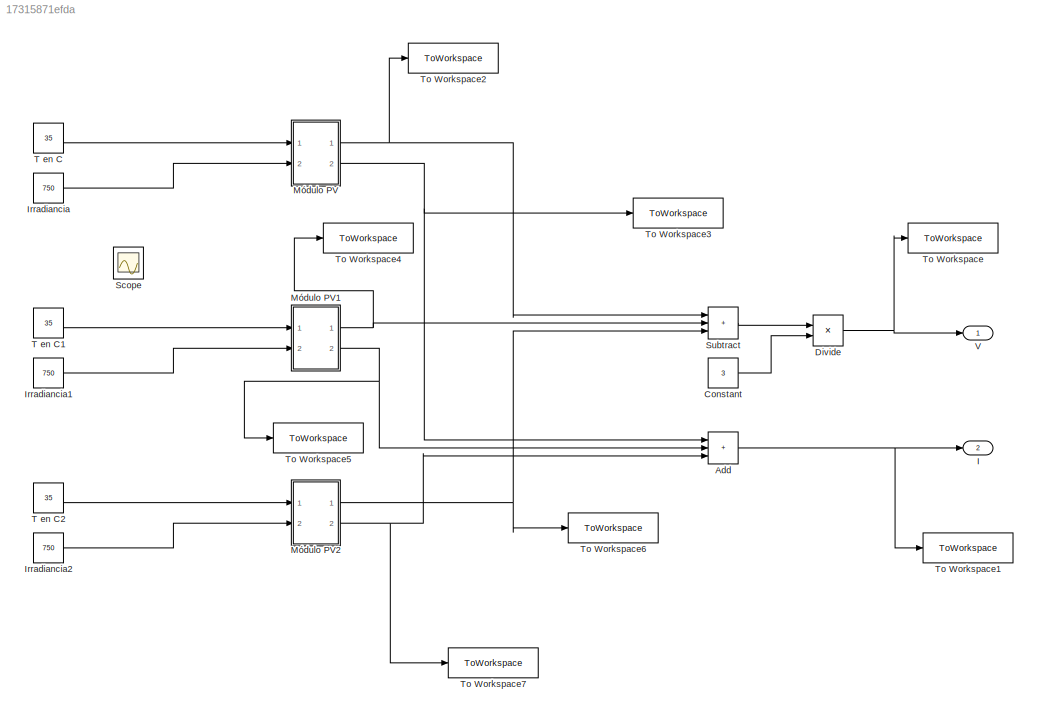
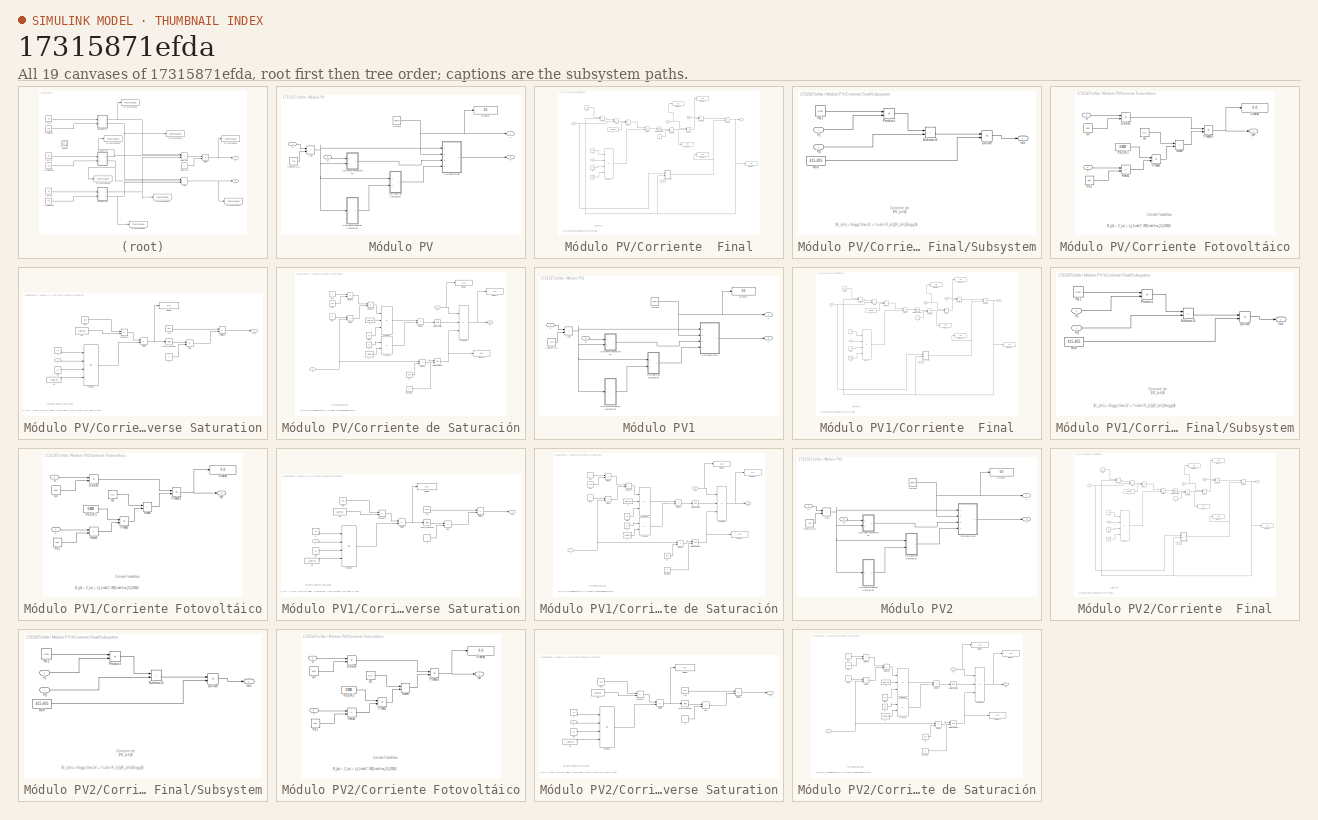
[diagram: thumbnail index - all 19 canvases of the model, root first then tree order]
MODEL slx_17315871efda
KIND model
CONFIG AbsTol = auto
CONFIG EnableMultiTasking = off
CONFIG FixedStep = auto
CONFIG MaxStep = auto
CONFIG MinStep = auto
CONFIG RelTol = 1e-3
CONFIG SampleTimeConstraint = Unconstrained
CONFIG SolverName = VariableStepAuto
CONFIG StartTime = 0.0
CONFIG StopTime = 20
BLOCK [Sum] Add
  IconShape = rectangular
  Inputs = +++
  Ports = [3, 1]
BLOCK [Constant] Constant
  Value = 3
BLOCK [Product] Divide
  Inputs = */
  Ports = [2, 1]
BLOCK [Outport] I
  Port = 2
  SignalName = Corriente Final
BLOCK [Constant] Irradiancia
  Value = 750
BLOCK [Constant] Irradiancia1
  Value = 750
BLOCK [Constant] Irradiancia2
  Value = 750
BLOCK [SubSystem] Módulo PV
  Ports = [2, 2]
  RequestExecContextInheritance = off
BLOCK [Sum] Módulo PV/Add
  IconShape = rectangular
  Ports = [2, 1]
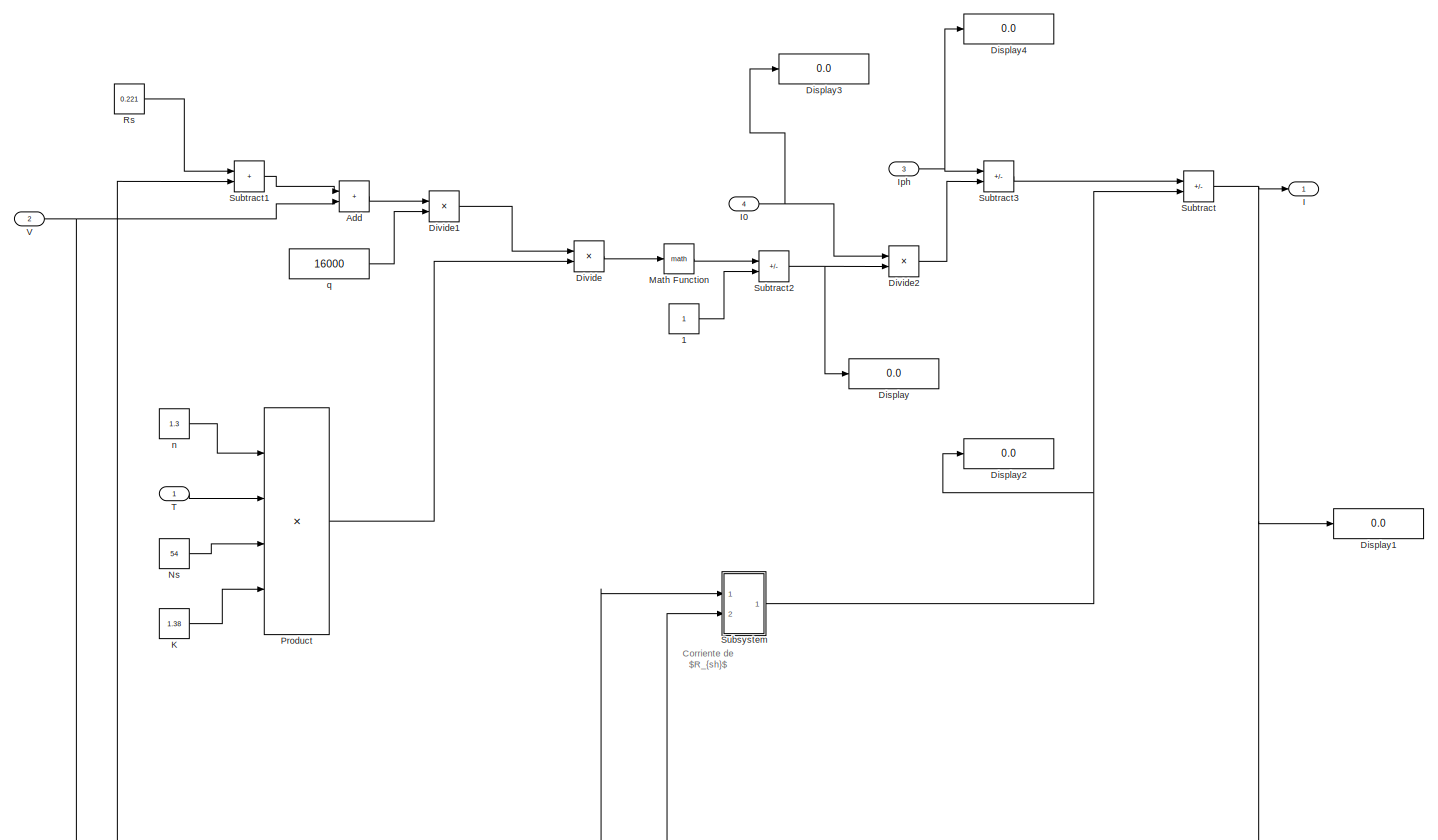
[diagram: Módulo PV/Corriente  Final - part 1/2, most of the canvas]
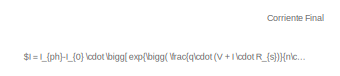
[diagram: Módulo PV/Corriente  Final - part 2/2, bottom left region]
BLOCK [SubSystem] Módulo PV/Corriente  Final
  Ports = [4, 1]
  RequestExecContextInheritance = off
BLOCK [Constant] Módulo PV/Corriente  Final/1
BLOCK [Sum] Módulo PV/Corriente  Final/Add
  IconShape = rectangular
  Ports = [2, 1]
BLOCK [Display] Módulo PV/Corriente  Final/Display
  Decimation = 1
  Ports = [1]
BLOCK [Display] Módulo PV/Corriente  Final/Display1
  Decimation = 1
  Ports = [1]
BLOCK [Display] Módulo PV/Corriente  Final/Display2
  Decimation = 1
  Ports = [1]
BLOCK [Display] Módulo PV/Corriente  Final/Display3
  Decimation = 1
  Ports = [1]
BLOCK [Display] Módulo PV/Corriente  Final/Display4
  Decimation = 1
  Ports = [1]
BLOCK [Product] Módulo PV/Corriente  Final/Divide
  Inputs = */
  Ports = [2, 1]
BLOCK [Product] Módulo PV/Corriente  Final/Divide1
  Inputs = **
  Ports = [2, 1]
BLOCK [Product] Módulo PV/Corriente  Final/Divide2
  Inputs = **
  Ports = [2, 1]
BLOCK [Outport] Módulo PV/Corriente  Final/I
BLOCK [Inport] Módulo PV/Corriente  Final/I0
  Port = 4
BLOCK [Inport] Módulo PV/Corriente  Final/Iph
  Port = 3
BLOCK [Constant] Módulo PV/Corriente  Final/K
  Value = 1.38
BLOCK [Math] Módulo PV/Corriente  Final/Math Function
  Ports = [1, 1]
BLOCK [Constant] Módulo PV/Corriente  Final/Ns
  Value = 54
BLOCK [Product] Módulo PV/Corriente  Final/Product
  Inputs = 4
  Ports = [4, 1]
BLOCK [Constant] Módulo PV/Corriente  Final/Rs
  Value = 0.221
BLOCK [SubSystem] Módulo PV/Corriente  Final/Subsystem
  Ports = [2, 1]
  RequestExecContextInheritance = off
BLOCK [Product] Módulo PV/Corriente  Final/Subsystem/Divide
  Inputs = */
  Ports = [2, 1]
BLOCK [Inport] Módulo PV/Corriente  Final/Subsystem/I()
  Port = 2
BLOCK [Outport] Módulo PV/Corriente  Final/Subsystem/Ish
BLOCK [Product] Módulo PV/Corriente  Final/Subsystem/Product
  Ports = [2, 1]
BLOCK [Constant] Módulo PV/Corriente  Final/Subsystem/Rs1
  Value = 0.221
BLOCK [Constant] Módulo PV/Corriente  Final/Subsystem/Rsh
  Value = 415.405
BLOCK [Sum] Módulo PV/Corriente  Final/Subsystem/Subtract1
  IconShape = rectangular
  Ports = [2, 1]
BLOCK [Inport] Módulo PV/Corriente  Final/Subsystem/V()
BLOCK [Sum] Módulo PV/Corriente  Final/Subtract
  IconShape = rectangular
  Inputs = +-
  Ports = [2, 1]
BLOCK [Sum] Módulo PV/Corriente  Final/Subtract1
  IconShape = rectangular
  Ports = [2, 1]
BLOCK [Sum] Módulo PV/Corriente  Final/Subtract2
  IconShape = rectangular
  Inputs = +-
  Ports = [2, 1]
BLOCK [Sum] Módulo PV/Corriente  Final/Subtract3
  IconShape = rectangular
  Inputs = +-
  Ports = [2, 1]
BLOCK [Inport] Módulo PV/Corriente  Final/T
BLOCK [Inport] Módulo PV/Corriente  Final/V
  Port = 2
BLOCK [Constant] Módulo PV/Corriente  Final/n
  Value = 1.3
BLOCK [Constant] Módulo PV/Corriente  Final/q
  Value = 16000
BLOCK [SubSystem] Módulo PV/Corriente Fotovoltáico
  Ports = [2, 1]
  RequestExecContextInheritance = off
BLOCK [Display] Módulo PV/Corriente Fotovoltáico/Display
  Decimation = 1
  Ports = [1]
BLOCK [Product] Módulo PV/Corriente Fotovoltáico/Division
  Inputs = */
  Ports = [2, 1]
BLOCK [Inport] Módulo PV/Corriente Fotovoltáico/G
BLOCK [Constant] Módulo PV/Corriente Fotovoltáico/Gn
  Value = 1000
BLOCK [Outport] Módulo PV/Corriente Fotovoltáico/Iph
BLOCK [Constant] Módulo PV/Corriente Fotovoltáico/Isc
  Value = 8.21
BLOCK [Product] Módulo PV/Corriente Fotovoltáico/Product
  Ports = [2, 1]
BLOCK [Product] Módulo PV/Corriente Fotovoltáico/Producto
  Ports = [2, 1]
BLOCK [Constant] Módulo PV/Corriente Fotovoltáico/RS1
  Value = 298
BLOCK [Constant] Módulo PV/Corriente Fotovoltáico/RS2 (Ki)
  Value = 0.0032
BLOCK [Sum] Módulo PV/Corriente Fotovoltáico/Resta2
  IconShape = rectangular
  Inputs = +-
  Ports = [2, 1]
BLOCK [Sum] Módulo PV/Corriente Fotovoltáico/Suma
  IconShape = rectangular
  Ports = [2, 1]
BLOCK [Inport] Módulo PV/Corriente Fotovoltáico/T
  Port = 2
BLOCK [SubSystem] Módulo PV/Corriente Reverse Saturation
  Ports = [1, 1]
  RequestExecContextInheritance = off
BLOCK [Constant] Módulo PV/Corriente Reverse Saturation/1
BLOCK [Display] Módulo PV/Corriente Reverse Saturation/Display
  Decimation = 1
  Ports = [1]
BLOCK [Product] Módulo PV/Corriente Reverse Saturation/Divide
  Inputs = */
  Ports = [2, 1]
BLOCK [Product] Módulo PV/Corriente Reverse Saturation/Divide1
  Inputs = */
  Ports = [2, 1]
BLOCK [Outport] Módulo PV/Corriente Reverse Saturation/Irs
BLOCK [Constant] Módulo PV/Corriente Reverse Saturation/Ish
  Value = 8.21
BLOCK [Constant] Módulo PV/Corriente Reverse Saturation/K1
  Value = 1.38e-23
BLOCK [Math] Módulo PV/Corriente Reverse Saturation/Math Function
  Ports = [1, 1]
BLOCK [Constant] Módulo PV/Corriente Reverse Saturation/Ns
  Value = 54
BLOCK [Sum] Módulo PV/Corriente Reverse Saturation/Plus
  IconShape = rectangular
  Inputs = +-
  Ports = [2, 1]
BLOCK [Product] Módulo PV/Corriente Reverse Saturation/Product
  Inputs = 4
  Ports = [4, 1]
BLOCK [Product] Módulo PV/Corriente Reverse Saturation/Product1
  Ports = [2, 1]
BLOCK [Inport] Módulo PV/Corriente Reverse Saturation/T
BLOCK [Constant] Módulo PV/Corriente Reverse Saturation/Voc
  Value = 32.9
BLOCK [Constant] Módulo PV/Corriente Reverse Saturation/n
  Value = 1.3
BLOCK [Constant] Módulo PV/Corriente Reverse Saturation/q1
  Value = 1.6e-19
BLOCK [SubSystem] Módulo PV/Corriente de Saturación
  Ports = [2, 1]
  RequestExecContextInheritance = off
BLOCK [Constant] Módulo PV/Corriente de Saturación/Constant
  Value = 3
BLOCK [Display] Módulo PV/Corriente de Saturación/Display
  Decimation = 1
  Ports = [1]
BLOCK [Display] Módulo PV/Corriente de Saturación/Display1
  Decimation = 1
  Ports = [1]
BLOCK [Display] Módulo PV/Corriente de Saturación/Display2
  Decimation = 1
  Ports = [1]
BLOCK [Product] Módulo PV/Corriente de Saturación/Divide
  Inputs = */
  Ports = [2, 1]
BLOCK [Product] Módulo PV/Corriente de Saturación/Divide1
  Inputs = */
  Ports = [2, 1]
BLOCK [Product] Módulo PV/Corriente de Saturación/Divide2
  Inputs = */
  Ports = [2, 1]
BLOCK [Product] Módulo PV/Corriente de Saturación/Divide3
  Inputs = */
  Ports = [2, 1]
BLOCK [Constant] Módulo PV/Corriente de Saturación/Eg0
  Value = 1.1
BLOCK [Outport] Módulo PV/Corriente de Saturación/Io
BLOCK [Inport] Módulo PV/Corriente de Saturación/Irs
  Port = 2
BLOCK [Constant] Módulo PV/Corriente de Saturación/K
  Value = 1.38e-23
BLOCK [Math] Módulo PV/Corriente de Saturación/Math Function
  Ports = [1, 1]
BLOCK [Math] Módulo PV/Corriente de Saturación/Math Function1
  Operator = pow
  Ports = [2, 1]
BLOCK [Product] Módulo PV/Corriente de Saturación/Product
  Inputs = 3
  Ports = [3, 1]
BLOCK [Product] Módulo PV/Corriente de Saturación/Product1
  Ports = [2, 1]
BLOCK [Product] Módulo PV/Corriente de Saturación/Product2
  Inputs = 3
  Ports = [3, 1]
BLOCK [Constant] Módulo PV/Corriente de Saturación/Rs1
BLOCK [Constant] Módulo PV/Corriente de Saturación/Rs2
BLOCK [Sum] Módulo PV/Corriente de Saturación/Subtract
  IconShape = rectangular
  Inputs = +-
  Ports = [2, 1]
BLOCK [Inport] Módulo PV/Corriente de Saturación/T
BLOCK [Constant] Módulo PV/Corriente de Saturación/Tn
  Value = 298
BLOCK [Constant] Módulo PV/Corriente de Saturación/Tn2
  Value = 298
BLOCK [Constant] Módulo PV/Corriente de Saturación/n
  Value = 1.3
BLOCK [Constant] Módulo PV/Corriente de Saturación/q
  Value = 1.6e-19
BLOCK [Display] Módulo PV/Display
  Decimation = 1
  Ports = [1]
BLOCK [Inport] Módulo PV/G
  Port = 2
BLOCK [Outport] Módulo PV/I
  Port = 2
BLOCK [Inport] Módulo PV/T
BLOCK [Constant] Módulo PV/T kelvin a C
  Value = 273
BLOCK [Outport] Módulo PV/V
BLOCK [Reference] Módulo PV/Voltaje  REF=simulink/Sources/Ramp
  Ports = [0, 1]
  SourceBlock = simulink/Sources/Ramp
  SourceProductBaseCode = SL
  SourceType = Ramp
BLOCK [SubSystem] Módulo PV1
  Ports = [2, 2]
  RequestExecContextInheritance = off
BLOCK [Sum] Módulo PV1/Add
  IconShape = rectangular
  Ports = [2, 1]
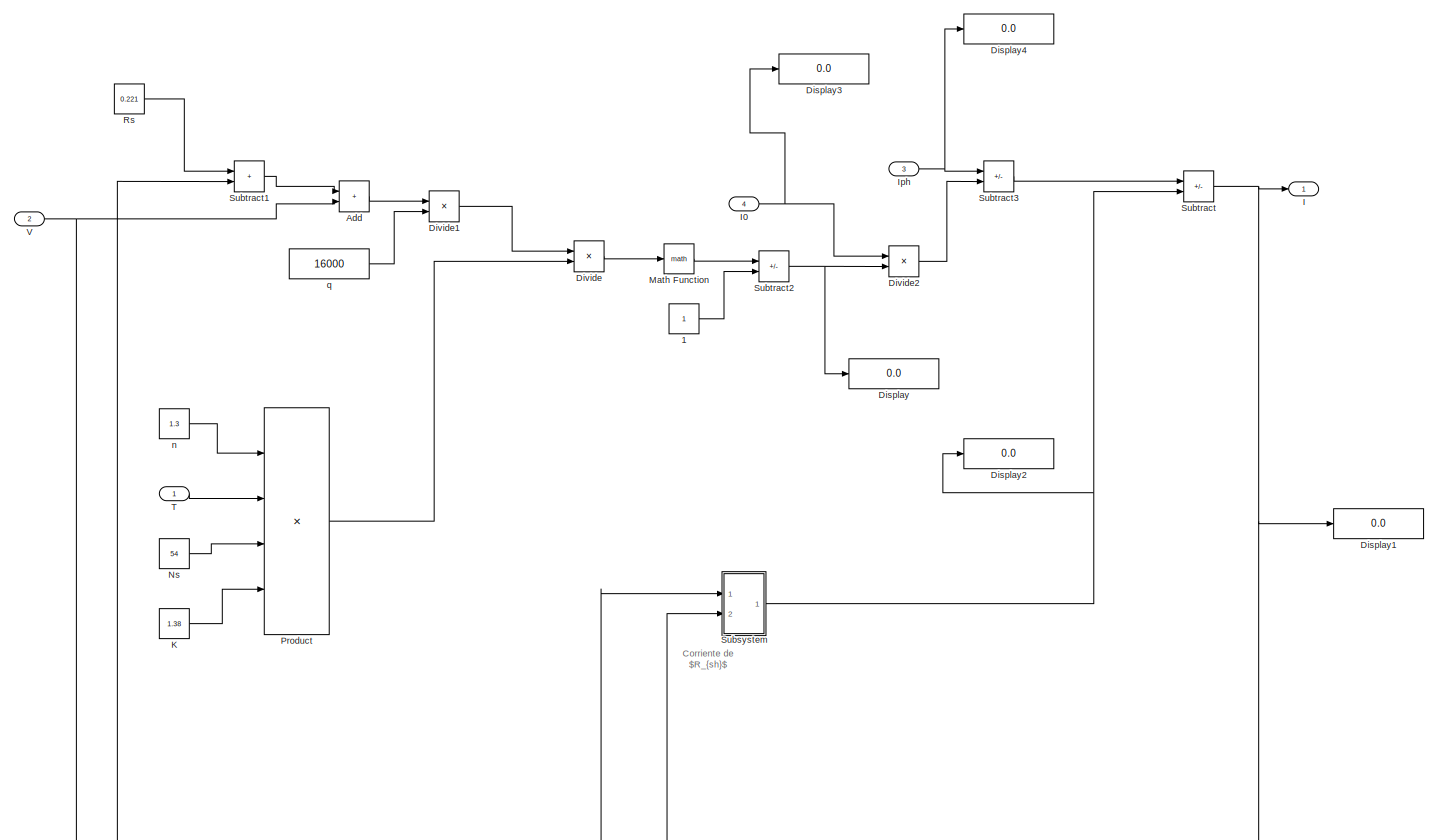
[diagram: Módulo PV1/Corriente  Final - part 1/2, most of the canvas]
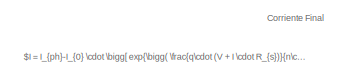
[diagram: Módulo PV1/Corriente  Final - part 2/2, bottom left region]
BLOCK [SubSystem] Módulo PV1/Corriente  Final
  Ports = [4, 1]
  RequestExecContextInheritance = off
BLOCK [Constant] Módulo PV1/Corriente  Final/1
BLOCK [Sum] Módulo PV1/Corriente  Final/Add
  IconShape = rectangular
  Ports = [2, 1]
BLOCK [Display] Módulo PV1/Corriente  Final/Display
  Decimation = 1
  Ports = [1]
BLOCK [Display] Módulo PV1/Corriente  Final/Display1
  Decimation = 1
  Ports = [1]
BLOCK [Display] Módulo PV1/Corriente  Final/Display2
  Decimation = 1
  Ports = [1]
BLOCK [Display] Módulo PV1/Corriente  Final/Display3
  Decimation = 1
  Ports = [1]
BLOCK [Display] Módulo PV1/Corriente  Final/Display4
  Decimation = 1
  Ports = [1]
BLOCK [Product] Módulo PV1/Corriente  Final/Divide
  Inputs = */
  Ports = [2, 1]
BLOCK [Product] Módulo PV1/Corriente  Final/Divide1
  Inputs = **
  Ports = [2, 1]
BLOCK [Product] Módulo PV1/Corriente  Final/Divide2
  Inputs = **
  Ports = [2, 1]
BLOCK [Outport] Módulo PV1/Corriente  Final/I
BLOCK [Inport] Módulo PV1/Corriente  Final/I0
  Port = 4
BLOCK [Inport] Módulo PV1/Corriente  Final/Iph
  Port = 3
BLOCK [Constant] Módulo PV1/Corriente  Final/K
  Value = 1.38
BLOCK [Math] Módulo PV1/Corriente  Final/Math Function
  Ports = [1, 1]
BLOCK [Constant] Módulo PV1/Corriente  Final/Ns
  Value = 54
BLOCK [Product] Módulo PV1/Corriente  Final/Product
  Inputs = 4
  Ports = [4, 1]
BLOCK [Constant] Módulo PV1/Corriente  Final/Rs
  Value = 0.221
BLOCK [SubSystem] Módulo PV1/Corriente  Final/Subsystem
  Ports = [2, 1]
  RequestExecContextInheritance = off
BLOCK [Product] Módulo PV1/Corriente  Final/Subsystem/Divide
  Inputs = */
  Ports = [2, 1]
BLOCK [Inport] Módulo PV1/Corriente  Final/Subsystem/I()
  Port = 2
BLOCK [Outport] Módulo PV1/Corriente  Final/Subsystem/Ish
BLOCK [Product] Módulo PV1/Corriente  Final/Subsystem/Product
  Ports = [2, 1]
BLOCK [Constant] Módulo PV1/Corriente  Final/Subsystem/Rs1
  Value = 0.221
BLOCK [Constant] Módulo PV1/Corriente  Final/Subsystem/Rsh
  Value = 415.405
BLOCK [Sum] Módulo PV1/Corriente  Final/Subsystem/Subtract1
  IconShape = rectangular
  Ports = [2, 1]
BLOCK [Inport] Módulo PV1/Corriente  Final/Subsystem/V()
BLOCK [Sum] Módulo PV1/Corriente  Final/Subtract
  IconShape = rectangular
  Inputs = +-
  Ports = [2, 1]
BLOCK [Sum] Módulo PV1/Corriente  Final/Subtract1
  IconShape = rectangular
  Ports = [2, 1]
BLOCK [Sum] Módulo PV1/Corriente  Final/Subtract2
  IconShape = rectangular
  Inputs = +-
  Ports = [2, 1]
BLOCK [Sum] Módulo PV1/Corriente  Final/Subtract3
  IconShape = rectangular
  Inputs = +-
  Ports = [2, 1]
BLOCK [Inport] Módulo PV1/Corriente  Final/T
BLOCK [Inport] Módulo PV1/Corriente  Final/V
  Port = 2
BLOCK [Constant] Módulo PV1/Corriente  Final/n
  Value = 1.3
BLOCK [Constant] Módulo PV1/Corriente  Final/q
  Value = 16000
BLOCK [SubSystem] Módulo PV1/Corriente Fotovoltáico
  Ports = [2, 1]
  RequestExecContextInheritance = off
BLOCK [Display] Módulo PV1/Corriente Fotovoltáico/Display
  Decimation = 1
  Ports = [1]
BLOCK [Product] Módulo PV1/Corriente Fotovoltáico/Division
  Inputs = */
  Ports = [2, 1]
BLOCK [Inport] Módulo PV1/Corriente Fotovoltáico/G
BLOCK [Constant] Módulo PV1/Corriente Fotovoltáico/Gn
  Value = 1000
BLOCK [Outport] Módulo PV1/Corriente Fotovoltáico/Iph
BLOCK [Constant] Módulo PV1/Corriente Fotovoltáico/Isc
  Value = 8.21
BLOCK [Product] Módulo PV1/Corriente Fotovoltáico/Product
  Ports = [2, 1]
BLOCK [Product] Módulo PV1/Corriente Fotovoltáico/Producto
  Ports = [2, 1]
BLOCK [Constant] Módulo PV1/Corriente Fotovoltáico/RS1
  Value = 298
BLOCK [Constant] Módulo PV1/Corriente Fotovoltáico/RS2 (Ki)
  Value = 0.0032
BLOCK [Sum] Módulo PV1/Corriente Fotovoltáico/Resta2
  IconShape = rectangular
  Inputs = +-
  Ports = [2, 1]
BLOCK [Sum] Módulo PV1/Corriente Fotovoltáico/Suma
  IconShape = rectangular
  Ports = [2, 1]
BLOCK [Inport] Módulo PV1/Corriente Fotovoltáico/T
  Port = 2
BLOCK [SubSystem] Módulo PV1/Corriente Reverse Saturation
  Ports = [1, 1]
  RequestExecContextInheritance = off
BLOCK [Constant] Módulo PV1/Corriente Reverse Saturation/1
BLOCK [Display] Módulo PV1/Corriente Reverse Saturation/Display
  Decimation = 1
  Ports = [1]
BLOCK [Product] Módulo PV1/Corriente Reverse Saturation/Divide
  Inputs = */
  Ports = [2, 1]
BLOCK [Product] Módulo PV1/Corriente Reverse Saturation/Divide1
  Inputs = */
  Ports = [2, 1]
BLOCK [Outport] Módulo PV1/Corriente Reverse Saturation/Irs
BLOCK [Constant] Módulo PV1/Corriente Reverse Saturation/Ish
  Value = 8.21
BLOCK [Constant] Módulo PV1/Corriente Reverse Saturation/K1
  Value = 1.38e-23
BLOCK [Math] Módulo PV1/Corriente Reverse Saturation/Math Function
  Ports = [1, 1]
BLOCK [Constant] Módulo PV1/Corriente Reverse Saturation/Ns
  Value = 54
BLOCK [Sum] Módulo PV1/Corriente Reverse Saturation/Plus
  IconShape = rectangular
  Inputs = +-
  Ports = [2, 1]
BLOCK [Product] Módulo PV1/Corriente Reverse Saturation/Product
  Inputs = 4
  Ports = [4, 1]
BLOCK [Product] Módulo PV1/Corriente Reverse Saturation/Product1
  Ports = [2, 1]
BLOCK [Inport] Módulo PV1/Corriente Reverse Saturation/T
BLOCK [Constant] Módulo PV1/Corriente Reverse Saturation/Voc
  Value = 32.9
BLOCK [Constant] Módulo PV1/Corriente Reverse Saturation/n
  Value = 1.3
BLOCK [Constant] Módulo PV1/Corriente Reverse Saturation/q1
  Value = 1.6e-19
BLOCK [SubSystem] Módulo PV1/Corriente de Saturación
  Ports = [2, 1]
  RequestExecContextInheritance = off
BLOCK [Constant] Módulo PV1/Corriente de Saturación/Constant
  Value = 3
BLOCK [Display] Módulo PV1/Corriente de Saturación/Display
  Decimation = 1
  Ports = [1]
BLOCK [Display] Módulo PV1/Corriente de Saturación/Display1
  Decimation = 1
  Ports = [1]
BLOCK [Display] Módulo PV1/Corriente de Saturación/Display2
  Decimation = 1
  Ports = [1]
BLOCK [Product] Módulo PV1/Corriente de Saturación/Divide
  Inputs = */
  Ports = [2, 1]
BLOCK [Product] Módulo PV1/Corriente de Saturación/Divide1
  Inputs = */
  Ports = [2, 1]
BLOCK [Product] Módulo PV1/Corriente de Saturación/Divide2
  Inputs = */
  Ports = [2, 1]
BLOCK [Product] Módulo PV1/Corriente de Saturación/Divide3
  Inputs = */
  Ports = [2, 1]
BLOCK [Constant] Módulo PV1/Corriente de Saturación/Eg0
  Value = 1.1
BLOCK [Outport] Módulo PV1/Corriente de Saturación/Io
BLOCK [Inport] Módulo PV1/Corriente de Saturación/Irs
  Port = 2
BLOCK [Constant] Módulo PV1/Corriente de Saturación/K
  Value = 1.38e-23
BLOCK [Math] Módulo PV1/Corriente de Saturación/Math Function
  Ports = [1, 1]
BLOCK [Math] Módulo PV1/Corriente de Saturación/Math Function1
  Operator = pow
  Ports = [2, 1]
BLOCK [Product] Módulo PV1/Corriente de Saturación/Product
  Inputs = 3
  Ports = [3, 1]
BLOCK [Product] Módulo PV1/Corriente de Saturación/Product1
  Ports = [2, 1]
BLOCK [Product] Módulo PV1/Corriente de Saturación/Product2
  Inputs = 3
  Ports = [3, 1]
BLOCK [Constant] Módulo PV1/Corriente de Saturación/Rs1
BLOCK [Constant] Módulo PV1/Corriente de Saturación/Rs2
BLOCK [Sum] Módulo PV1/Corriente de Saturación/Subtract
  IconShape = rectangular
  Inputs = +-
  Ports = [2, 1]
BLOCK [Inport] Módulo PV1/Corriente de Saturación/T
BLOCK [Constant] Módulo PV1/Corriente de Saturación/Tn
  Value = 298
BLOCK [Constant] Módulo PV1/Corriente de Saturación/Tn2
  Value = 298
BLOCK [Constant] Módulo PV1/Corriente de Saturación/n
  Value = 1.3
BLOCK [Constant] Módulo PV1/Corriente de Saturación/q
  Value = 1.6e-19
BLOCK [Display] Módulo PV1/Display
  Decimation = 1
  Ports = [1]
BLOCK [Inport] Módulo PV1/G
  Port = 2
BLOCK [Outport] Módulo PV1/I
  Port = 2
BLOCK [Inport] Módulo PV1/T
BLOCK [Constant] Módulo PV1/T kelvin a C
  Value = 273
BLOCK [Outport] Módulo PV1/V
BLOCK [Reference] Módulo PV1/Voltaje  REF=simulink/Sources/Ramp
  Ports = [0, 1]
  SourceBlock = simulink/Sources/Ramp
  SourceProductBaseCode = SL
  SourceType = Ramp
BLOCK [SubSystem] Módulo PV2
  Ports = [2, 2]
  RequestExecContextInheritance = off
BLOCK [Sum] Módulo PV2/Add
  IconShape = rectangular
  Ports = [2, 1]
BLOCK [SubSystem] Módulo PV2/Corriente  Final
  Ports = [4, 1]
  RequestExecContextInheritance = off
BLOCK [Constant] Módulo PV2/Corriente  Final/1
BLOCK [Sum] Módulo PV2/Corriente  Final/Add
  IconShape = rectangular
  Ports = [2, 1]
BLOCK [Display] Módulo PV2/Corriente  Final/Display
  Decimation = 1
  Ports = [1]
BLOCK [Display] Módulo PV2/Corriente  Final/Display1
  Decimation = 1
  Ports = [1]
BLOCK [Display] Módulo PV2/Corriente  Final/Display2
  Decimation = 1
  Ports = [1]
BLOCK [Display] Módulo PV2/Corriente  Final/Display3
  Decimation = 1
  Ports = [1]
BLOCK [Display] Módulo PV2/Corriente  Final/Display4
  Decimation = 1
  Ports = [1]
BLOCK [Product] Módulo PV2/Corriente  Final/Divide
  Inputs = */
  Ports = [2, 1]
BLOCK [Product] Módulo PV2/Corriente  Final/Divide1
  Inputs = **
  Ports = [2, 1]
BLOCK [Product] Módulo PV2/Corriente  Final/Divide2
  Inputs = **
  Ports = [2, 1]
BLOCK [Outport] Módulo PV2/Corriente  Final/I
BLOCK [Inport] Módulo PV2/Corriente  Final/I0
  Port = 4
BLOCK [Inport] Módulo PV2/Corriente  Final/Iph
  Port = 3
BLOCK [Constant] Módulo PV2/Corriente  Final/K
  Value = 1.38
BLOCK [Math] Módulo PV2/Corriente  Final/Math Function
  Ports = [1, 1]
BLOCK [Constant] Módulo PV2/Corriente  Final/Ns
  Value = 54
BLOCK [Product] Módulo PV2/Corriente  Final/Product
  Inputs = 4
  Ports = [4, 1]
BLOCK [Constant] Módulo PV2/Corriente  Final/Rs
  Value = 0.221
BLOCK [SubSystem] Módulo PV2/Corriente  Final/Subsystem
  Ports = [2, 1]
  RequestExecContextInheritance = off
BLOCK [Product] Módulo PV2/Corriente  Final/Subsystem/Divide
  Inputs = */
  Ports = [2, 1]
BLOCK [Inport] Módulo PV2/Corriente  Final/Subsystem/I()
  Port = 2
BLOCK [Outport] Módulo PV2/Corriente  Final/Subsystem/Ish
BLOCK [Product] Módulo PV2/Corriente  Final/Subsystem/Product
  Ports = [2, 1]
BLOCK [Constant] Módulo PV2/Corriente  Final/Subsystem/Rs1
  Value = 0.221
BLOCK [Constant] Módulo PV2/Corriente  Final/Subsystem/Rsh
  Value = 415.405
BLOCK [Sum] Módulo PV2/Corriente  Final/Subsystem/Subtract1
  IconShape = rectangular
  Ports = [2, 1]
BLOCK [Inport] Módulo PV2/Corriente  Final/Subsystem/V()
BLOCK [Sum] Módulo PV2/Corriente  Final/Subtract
  IconShape = rectangular
  Inputs = +-
  Ports = [2, 1]
BLOCK [Sum] Módulo PV2/Corriente  Final/Subtract1
  IconShape = rectangular
  Ports = [2, 1]
BLOCK [Sum] Módulo PV2/Corriente  Final/Subtract2
  IconShape = rectangular
  Inputs = +-
  Ports = [2, 1]
BLOCK [Sum] Módulo PV2/Corriente  Final/Subtract3
  IconShape = rectangular
  Inputs = +-
  Ports = [2, 1]
BLOCK [Inport] Módulo PV2/Corriente  Final/T
BLOCK [Inport] Módulo PV2/Corriente  Final/V
  Port = 2
BLOCK [Constant] Módulo PV2/Corriente  Final/n
  Value = 1.3
BLOCK [Constant] Módulo PV2/Corriente  Final/q
  Value = 16000
BLOCK [SubSystem] Módulo PV2/Corriente Fotovoltáico
  Ports = [2, 1]
  RequestExecContextInheritance = off
BLOCK [Display] Módulo PV2/Corriente Fotovoltáico/Display
  Decimation = 1
  Ports = [1]
BLOCK [Product] Módulo PV2/Corriente Fotovoltáico/Division
  Inputs = */
  Ports = [2, 1]
BLOCK [Inport] Módulo PV2/Corriente Fotovoltáico/G
BLOCK [Constant] Módulo PV2/Corriente Fotovoltáico/Gn
  Value = 1000
BLOCK [Outport] Módulo PV2/Corriente Fotovoltáico/Iph
BLOCK [Constant] Módulo PV2/Corriente Fotovoltáico/Isc
  Value = 8.21
BLOCK [Product] Módulo PV2/Corriente Fotovoltáico/Product
  Ports = [2, 1]
BLOCK [Product] Módulo PV2/Corriente Fotovoltáico/Producto
  Ports = [2, 1]
BLOCK [Constant] Módulo PV2/Corriente Fotovoltáico/RS1
  Value = 298
BLOCK [Constant] Módulo PV2/Corriente Fotovoltáico/RS2 (Ki)
  Value = 0.0032
BLOCK [Sum] Módulo PV2/Corriente Fotovoltáico/Resta2
  IconShape = rectangular
  Inputs = +-
  Ports = [2, 1]
BLOCK [Sum] Módulo PV2/Corriente Fotovoltáico/Suma
  IconShape = rectangular
  Ports = [2, 1]
BLOCK [Inport] Módulo PV2/Corriente Fotovoltáico/T
  Port = 2
BLOCK [SubSystem] Módulo PV2/Corriente Reverse Saturation
  Ports = [1, 1]
  RequestExecContextInheritance = off
BLOCK [Constant] Módulo PV2/Corriente Reverse Saturation/1
BLOCK [Display] Módulo PV2/Corriente Reverse Saturation/Display
  Decimation = 1
  Ports = [1]
BLOCK [Product] Módulo PV2/Corriente Reverse Saturation/Divide
  Inputs = */
  Ports = [2, 1]
BLOCK [Product] Módulo PV2/Corriente Reverse Saturation/Divide1
  Inputs = */
  Ports = [2, 1]
BLOCK [Outport] Módulo PV2/Corriente Reverse Saturation/Irs
BLOCK [Constant] Módulo PV2/Corriente Reverse Saturation/Ish
  Value = 8.21
BLOCK [Constant] Módulo PV2/Corriente Reverse Saturation/K1
  Value = 1.38e-23
BLOCK [Math] Módulo PV2/Corriente Reverse Saturation/Math Function
  Ports = [1, 1]
BLOCK [Constant] Módulo PV2/Corriente Reverse Saturation/Ns
  Value = 54
BLOCK [Sum] Módulo PV2/Corriente Reverse Saturation/Plus
  IconShape = rectangular
  Inputs = +-
  Ports = [2, 1]
BLOCK [Product] Módulo PV2/Corriente Reverse Saturation/Product
  Inputs = 4
  Ports = [4, 1]
BLOCK [Product] Módulo PV2/Corriente Reverse Saturation/Product1
  Ports = [2, 1]
BLOCK [Inport] Módulo PV2/Corriente Reverse Saturation/T
BLOCK [Constant] Módulo PV2/Corriente Reverse Saturation/Voc
  Value = 32.9
BLOCK [Constant] Módulo PV2/Corriente Reverse Saturation/n
  Value = 1.3
BLOCK [Constant] Módulo PV2/Corriente Reverse Saturation/q1
  Value = 1.6e-19
BLOCK [SubSystem] Módulo PV2/Corriente de Saturación
  Ports = [2, 1]
  RequestExecContextInheritance = off
BLOCK [Constant] Módulo PV2/Corriente de Saturación/Constant
  Value = 3
BLOCK [Display] Módulo PV2/Corriente de Saturación/Display
  Decimation = 1
  Ports = [1]
BLOCK [Display] Módulo PV2/Corriente de Saturación/Display1
  Decimation = 1
  Ports = [1]
BLOCK [Display] Módulo PV2/Corriente de Saturación/Display2
  Decimation = 1
  Ports = [1]
BLOCK [Product] Módulo PV2/Corriente de Saturación/Divide
  Inputs = */
  Ports = [2, 1]
BLOCK [Product] Módulo PV2/Corriente de Saturación/Divide1
  Inputs = */
  Ports = [2, 1]
BLOCK [Product] Módulo PV2/Corriente de Saturación/Divide2
  Inputs = */
  Ports = [2, 1]
BLOCK [Product] Módulo PV2/Corriente de Saturación/Divide3
  Inputs = */
  Ports = [2, 1]
BLOCK [Constant] Módulo PV2/Corriente de Saturación/Eg0
  Value = 1.1
BLOCK [Outport] Módulo PV2/Corriente de Saturación/Io
BLOCK [Inport] Módulo PV2/Corriente de Saturación/Irs
  Port = 2
BLOCK [Constant] Módulo PV2/Corriente de Saturación/K
  Value = 1.38e-23
BLOCK [Math] Módulo PV2/Corriente de Saturación/Math Function
  Ports = [1, 1]
BLOCK [Math] Módulo PV2/Corriente de Saturación/Math Function1
  Operator = pow
  Ports = [2, 1]
BLOCK [Product] Módulo PV2/Corriente de Saturación/Product
  Inputs = 3
  Ports = [3, 1]
BLOCK [Product] Módulo PV2/Corriente de Saturación/Product1
  Ports = [2, 1]
BLOCK [Product] Módulo PV2/Corriente de Saturación/Product2
  Inputs = 3
  Ports = [3, 1]
BLOCK [Constant] Módulo PV2/Corriente de Saturación/Rs1
BLOCK [Constant] Módulo PV2/Corriente de Saturación/Rs2
BLOCK [Sum] Módulo PV2/Corriente de Saturación/Subtract
  IconShape = rectangular
  Inputs = +-
  Ports = [2, 1]
BLOCK [Inport] Módulo PV2/Corriente de Saturación/T
BLOCK [Constant] Módulo PV2/Corriente de Saturación/Tn
  Value = 298
BLOCK [Constant] Módulo PV2/Corriente de Saturación/Tn2
  Value = 298
BLOCK [Constant] Módulo PV2/Corriente de Saturación/n
  Value = 1.3
BLOCK [Constant] Módulo PV2/Corriente de Saturación/q
  Value = 1.6e-19
BLOCK [Display] Módulo PV2/Display
  Decimation = 1
  Ports = [1]
BLOCK [Inport] Módulo PV2/G
  Port = 2
BLOCK [Outport] Módulo PV2/I
  Port = 2
BLOCK [Inport] Módulo PV2/T
BLOCK [Constant] Módulo PV2/T kelvin a C
  Value = 273
BLOCK [Outport] Módulo PV2/V
BLOCK [Reference] Módulo PV2/Voltaje  REF=simulink/Sources/Ramp
  Ports = [0, 1]
  SourceBlock = simulink/Sources/Ramp
  SourceProductBaseCode = SL
  SourceType = Ramp
BLOCK [Scope] Scope
  Floating = off
  IOType = viewer
  NumInputPorts = 1
  Ports = []
  ScopeSpecificationString = Simulink.scopes.TimeScopeBlockCfg('CurrentConfiguration', extmgr.ConfigurationSet(extmgr.Configuration('Core','General UI',true),extmgr.Configuration('Core','Source UI',true),extmgr.Configuration('Sources','WiredSimulink',true),extmgr.Configuration('Visuals','Time Domain',true,'SerializedDisplays',{struct('MinYLimReal','5.1695','MaxYLimReal','7.1695','YLabelReal','','MinYLimMag','5.1695','MaxYLimM...<+1353ch>
BLOCK [Sum] Subtract
  IconShape = rectangular
  Inputs = +++
  Ports = [3, 1]
BLOCK [Constant] T en C
  SampleTime = 750
  Value = 35
BLOCK [Constant] T en C1
  SampleTime = 750
  Value = 35
BLOCK [Constant] T en C2
  SampleTime = 750
  Value = 35
BLOCK [ToWorkspace] To Workspace
  FixptAsFi = on
  MaxDataPoints = inf
  Ports = [1]
  SampleTime = -1
  SaveFormat = Timeseries
  VariableName = V_total
BLOCK [ToWorkspace] To Workspace1
  FixptAsFi = on
  MaxDataPoints = inf
  Ports = [1]
  SampleTime = -1
  SaveFormat = Timeseries
  VariableName = I_total
BLOCK [ToWorkspace] To Workspace2
  FixptAsFi = on
  MaxDataPoints = inf
  Ports = [1]
  SampleTime = -1
  SaveFormat = Timeseries
  VariableName = V1
BLOCK [ToWorkspace] To Workspace3
  FixptAsFi = on
  MaxDataPoints = inf
  Ports = [1]
  SampleTime = -1
  SaveFormat = Timeseries
  VariableName = I1
BLOCK [ToWorkspace] To Workspace4
  FixptAsFi = on
  MaxDataPoints = inf
  Ports = [1]
  SampleTime = -1
  SaveFormat = Timeseries
  VariableName = V2
BLOCK [ToWorkspace] To Workspace5
  FixptAsFi = on
  MaxDataPoints = inf
  Ports = [1]
  SampleTime = -1
  SaveFormat = Timeseries
  VariableName = I2
BLOCK [ToWorkspace] To Workspace6
  FixptAsFi = on
  MaxDataPoints = inf
  Ports = [1]
  SampleTime = -1
  SaveFormat = Timeseries
  VariableName = V3
BLOCK [ToWorkspace] To Workspace7
  FixptAsFi = on
  MaxDataPoints = inf
  Ports = [1]
  SampleTime = -1
  SaveFormat = Timeseries
  VariableName = I3
BLOCK [Outport] V
  SignalName = Voltaje Final
ANNOTATION Módulo PV/Corriente  Final: Corriente Final
ANNOTATION Módulo PV/Corriente  Final: $I = I_{ph}-I_{0} \cdot \bigg[ exp{\bigg( \frac{q\cdot (V + I \cdot R_{s})}{n\cdot N_{s}\cdot K \cdot T}\bigg)}-1 \bigg] - I_{sh}$
ANNOTATION Módulo PV/Corriente  Final: Corriente de $R_{sh}$
ANNOTATION Módulo PV/Corriente  Final/Subsystem: $I_{sh} = \bigg( \frac{V + I \cdot R_{s}}{R_{sh}}\bigg)$
ANNOTATION Módulo PV/Corriente  Final/Subsystem: Corriente de $R_{sh}$
ANNOTATION Módulo PV/Corriente Fotovoltáico: Corriente Fotovoltáica
ANNOTATION Módulo PV/Corriente Fotovoltáico: $I_{ph} = [I_{sc} + k_{i}\cdot(T-298)]\cdot\frac_{G}{1000}$
ANNOTATION Módulo PV/Corriente Reverse Saturation: Corriente Reverse Saturation
ANNOTATION Módulo PV/Corriente Reverse Saturation: $I_{rs} = \frac{I_{sc}}{e^{\bigg( \frac{q\cdot V_{oc}}{n\cdot N_{s}\cdot K \cdot T}\bigg)}-1}$
ANNOTATION Módulo PV/Corriente de Saturación: Corriente de Saturación
ANNOTATION Módulo PV/Corriente de Saturación: $I_{0} = I_{rs} \cdot \bigg(\frac{T}{T_{n}}\bigg)^3 \cdot exp\bigg[\frac{q \cdot E_{g0} \cdot (1/T_{n} - 1/T)}{n \cdot K} \bigg]$
ANNOTATION Módulo PV1/Corriente  Final: Corriente Final
ANNOTATION Módulo PV1/Corriente  Final: $I = I_{ph}-I_{0} \cdot \bigg[ exp{\bigg( \frac{q\cdot (V + I \cdot R_{s})}{n\cdot N_{s}\cdot K \cdot T}\bigg)}-1 \bigg] - I_{sh}$
ANNOTATION Módulo PV1/Corriente  Final: Corriente de $R_{sh}$
ANNOTATION Módulo PV1/Corriente  Final/Subsystem: $I_{sh} = \bigg( \frac{V + I \cdot R_{s}}{R_{sh}}\bigg)$
ANNOTATION Módulo PV1/Corriente  Final/Subsystem: Corriente de $R_{sh}$
ANNOTATION Módulo PV1/Corriente Fotovoltáico: Corriente Fotovoltáica
ANNOTATION Módulo PV1/Corriente Fotovoltáico: $I_{ph} = [I_{sc} + k_{i}\cdot(T-298)]\cdot\frac_{G}{1000}$
ANNOTATION Módulo PV1/Corriente Reverse Saturation: Corriente Reverse Saturation
ANNOTATION Módulo PV1/Corriente Reverse Saturation: $I_{rs} = \frac{I_{sc}}{e^{\bigg( \frac{q\cdot V_{oc}}{n\cdot N_{s}\cdot K \cdot T}\bigg)}-1}$
ANNOTATION Módulo PV1/Corriente de Saturación: Corriente de Saturación
ANNOTATION Módulo PV1/Corriente de Saturación: $I_{0} = I_{rs} \cdot \bigg(\frac{T}{T_{n}}\bigg)^3 \cdot exp\bigg[\frac{q \cdot E_{g0} \cdot (1/T_{n} - 1/T)}{n \cdot K} \bigg]$
ANNOTATION Módulo PV2/Corriente  Final: Corriente Final
ANNOTATION Módulo PV2/Corriente  Final: $I = I_{ph}-I_{0} \cdot \bigg[ exp{\bigg( \frac{q\cdot (V + I \cdot R_{s})}{n\cdot N_{s}\cdot K \cdot T}\bigg)}-1 \bigg] - I_{sh}$
ANNOTATION Módulo PV2/Corriente  Final: Corriente de $R_{sh}$
ANNOTATION Módulo PV2/Corriente  Final/Subsystem: $I_{sh} = \bigg( \frac{V + I \cdot R_{s}}{R_{sh}}\bigg)$
ANNOTATION Módulo PV2/Corriente  Final/Subsystem: Corriente de $R_{sh}$
ANNOTATION Módulo PV2/Corriente Fotovoltáico: Corriente Fotovoltáica
ANNOTATION Módulo PV2/Corriente Fotovoltáico: $I_{ph} = [I_{sc} + k_{i}\cdot(T-298)]\cdot\frac_{G}{1000}$
ANNOTATION Módulo PV2/Corriente Reverse Saturation: Corriente Reverse Saturation
ANNOTATION Módulo PV2/Corriente Reverse Saturation: $I_{rs} = \frac{I_{sc}}{e^{\bigg( \frac{q\cdot V_{oc}}{n\cdot N_{s}\cdot K \cdot T}\bigg)}-1}$
ANNOTATION Módulo PV2/Corriente de Saturación: Corriente de Saturación
ANNOTATION Módulo PV2/Corriente de Saturación: $I_{0} = I_{rs} \cdot \bigg(\frac{T}{T_{n}}\bigg)^3 \cdot exp\bigg[\frac{q \cdot E_{g0} \cdot (1/T_{n} - 1/T)}{n \cdot K} \bigg]$
NET Add:1 -> I:1, To Workspace1:1
LINE Constant:1 -> Divide:2
NET Divide:1 -> To Workspace:1, V:1
LINE Irradiancia1:1 -> Módulo PV1:2
LINE Irradiancia2:1 -> Módulo PV2:2
LINE Irradiancia:1 -> Módulo PV:2
NET Módulo PV/Add:1 -> Módulo PV/Corriente  Final:1, Módulo PV/Corriente Fotovoltáico:2, Módulo PV/Corriente Reverse Saturation:1, Módulo PV/Corriente de Saturación:1
LINE Módulo PV/Corriente  Final/1:1 -> Módulo PV/Corriente  Final/Subtract2:2
LINE Módulo PV/Corriente  Final/Add:1 -> Módulo PV/Corriente  Final/Divide1:1
LINE Módulo PV/Corriente  Final/Divide1:1 -> Módulo PV/Corriente  Final/Divide:1
LINE Módulo PV/Corriente  Final/Divide2:1 -> Módulo PV/Corriente  Final/Subtract3:2
LINE Módulo PV/Corriente  Final/Divide:1 -> Módulo PV/Corriente  Final/Math Function:1
NET Módulo PV/Corriente  Final/I0:1 -> Módulo PV/Corriente  Final/Display3:1, Módulo PV/Corriente  Final/Divide2:1
NET Módulo PV/Corriente  Final/Iph:1 -> Módulo PV/Corriente  Final/Display4:1, Módulo PV/Corriente  Final/Subtract3:1
LINE Módulo PV/Corriente  Final/K:1 -> Módulo PV/Corriente  Final/Product:4
LINE Módulo PV/Corriente  Final/Math Function:1 -> Módulo PV/Corriente  Final/Subtract2:1
LINE Módulo PV/Corriente  Final/Ns:1 -> Módulo PV/Corriente  Final/Product:3
LINE Módulo PV/Corriente  Final/Product:1 -> Módulo PV/Corriente  Final/Divide:2
LINE Módulo PV/Corriente  Final/Rs:1 -> Módulo PV/Corriente  Final/Subtract1:1
LINE Módulo PV/Corriente  Final/Subsystem/Divide:1 -> Módulo PV/Corriente  Final/Subsystem/Ish:1
LINE Módulo PV/Corriente  Final/Subsystem/I():1 -> Módulo PV/Corriente  Final/Subsystem/Product:2
LINE Módulo PV/Corriente  Final/Subsystem/Product:1 -> Módulo PV/Corriente  Final/Subsystem/Subtract1:1
LINE Módulo PV/Corriente  Final/Subsystem/Rs1:1 -> Módulo PV/Corriente  Final/Subsystem/Product:1
LINE Módulo PV/Corriente  Final/Subsystem/Rsh:1 -> Módulo PV/Corriente  Final/Subsystem/Divide:2
LINE Módulo PV/Corriente  Final/Subsystem/Subtract1:1 -> Módulo PV/Corriente  Final/Subsystem/Divide:1
LINE Módulo PV/Corriente  Final/Subsystem/V():1 -> Módulo PV/Corriente  Final/Subsystem/Subtract1:2
NET Módulo PV/Corriente  Final/Subsystem:1 -> Módulo PV/Corriente  Final/Display2:1, Módulo PV/Corriente  Final/Subtract:2
LINE Módulo PV/Corriente  Final/Subtract1:1 -> Módulo PV/Corriente  Final/Add:1
NET Módulo PV/Corriente  Final/Subtract2:1 -> Módulo PV/Corriente  Final/Display:1, Módulo PV/Corriente  Final/Divide2:2
LINE Módulo PV/Corriente  Final/Subtract3:1 -> Módulo PV/Corriente  Final/Subtract:1
NET Módulo PV/Corriente  Final/Subtract:1 -> Módulo PV/Corriente  Final/Display1:1, Módulo PV/Corriente  Final/I:1, Módulo PV/Corriente  Final/Subsystem:2, Módulo PV/Corriente  Final/Subtract1:2
LINE Módulo PV/Corriente  Final/T:1 -> Módulo PV/Corriente  Final/Product:2
NET Módulo PV/Corriente  Final/V:1 -> Módulo PV/Corriente  Final/Add:2, Módulo PV/Corriente  Final/Subsystem:1
LINE Módulo PV/Corriente  Final/n:1 -> Módulo PV/Corriente  Final/Product:1
LINE Módulo PV/Corriente  Final/q:1 -> Módulo PV/Corriente  Final/Divide1:2
LINE Módulo PV/Corriente  Final:1 -> Módulo PV/I:1
LINE Módulo PV/Corriente Fotovoltáico/Division:1 -> Módulo PV/Corriente Fotovoltáico/Producto:1
LINE Módulo PV/Corriente Fotovoltáico/G:1 -> Módulo PV/Corriente Fotovoltáico/Division:1
LINE Módulo PV/Corriente Fotovoltáico/Gn:1 -> Módulo PV/Corriente Fotovoltáico/Division:2
LINE Módulo PV/Corriente Fotovoltáico/Isc:1 -> Módulo PV/Corriente Fotovoltáico/Suma:1
LINE Módulo PV/Corriente Fotovoltáico/Product:1 -> Módulo PV/Corriente Fotovoltáico/Suma:2
NET Módulo PV/Corriente Fotovoltáico/Producto:1 -> Módulo PV/Corriente Fotovoltáico/Display:1, Módulo PV/Corriente Fotovoltáico/Iph:1
LINE Módulo PV/Corriente Fotovoltáico/RS1:1 -> Módulo PV/Corriente Fotovoltáico/Resta2:2
LINE Módulo PV/Corriente Fotovoltáico/RS2 (Ki):1 -> Módulo PV/Corriente Fotovoltáico/Product:1
LINE Módulo PV/Corriente Fotovoltáico/Resta2:1 -> Módulo PV/Corriente Fotovoltáico/Product:2
LINE Módulo PV/Corriente Fotovoltáico/Suma:1 -> Módulo PV/Corriente Fotovoltáico/Producto:2
LINE Módulo PV/Corriente Fotovoltáico/T:1 -> Módulo PV/Corriente Fotovoltáico/Resta2:1
LINE Módulo PV/Corriente Fotovoltáico:1 -> Módulo PV/Corriente  Final:3
LINE Módulo PV/Corriente Reverse Saturation/1:1 -> Módulo PV/Corriente Reverse Saturation/Plus:2
LINE Módulo PV/Corriente Reverse Saturation/Divide1:1 -> Módulo PV/Corriente Reverse Saturation/Irs:1
NET Módulo PV/Corriente Reverse Saturation/Divide:1 -> Módulo PV/Corriente Reverse Saturation/Display:1, Módulo PV/Corriente Reverse Saturation/Math Function:1
LINE Módulo PV/Corriente Reverse Saturation/Ish:1 -> Módulo PV/Corriente Reverse Saturation/Divide1:1
LINE Módulo PV/Corriente Reverse Saturation/K1:1 -> Módulo PV/Corriente Reverse Saturation/Product:4
LINE Módulo PV/Corriente Reverse Saturation/Math Function:1 -> Módulo PV/Corriente Reverse Saturation/Plus:1
LINE Módulo PV/Corriente Reverse Saturation/Ns:1 -> Módulo PV/Corriente Reverse Saturation/Product:3
LINE Módulo PV/Corriente Reverse Saturation/Plus:1 -> Módulo PV/Corriente Reverse Saturation/Divide1:2
LINE Módulo PV/Corriente Reverse Saturation/Product1:1 -> Módulo PV/Corriente Reverse Saturation/Divide:1
LINE Módulo PV/Corriente Reverse Saturation/Product:1 -> Módulo PV/Corriente Reverse Saturation/Divide:2
LINE Módulo PV/Corriente Reverse Saturation/T:1 -> Módulo PV/Corriente Reverse Saturation/Product:2
LINE Módulo PV/Corriente Reverse Saturation/Voc:1 -> Módulo PV/Corriente Reverse Saturation/Product1:1
LINE Módulo PV/Corriente Reverse Saturation/n:1 -> Módulo PV/Corriente Reverse Saturation/Product:1
LINE Módulo PV/Corriente Reverse Saturation/q1:1 -> Módulo PV/Corriente Reverse Saturation/Product1:2
LINE Módulo PV/Corriente Reverse Saturation:1 -> Módulo PV/Corriente de Saturación:2
LINE Módulo PV/Corriente de Saturación/Constant:1 -> Módulo PV/Corriente de Saturación/Math Function1:2
LINE Módulo PV/Corriente de Saturación/Divide1:1 -> Módulo PV/Corriente de Saturación/Subtract:1
LINE Módulo PV/Corriente de Saturación/Divide2:1 -> Módulo PV/Corriente de Saturación/Math Function:1
LINE Módulo PV/Corriente de Saturación/Divide3:1 -> Módulo PV/Corriente de Saturación/Math Function1:1
LINE Módulo PV/Corriente de Saturación/Divide:1 -> Módulo PV/Corriente de Saturación/Subtract:2
LINE Módulo PV/Corriente de Saturación/Eg0:1 -> Módulo PV/Corriente de Saturación/Product:3
NET Módulo PV/Corriente de Saturación/Irs:1 -> Módulo PV/Corriente de Saturación/Display:1, Módulo PV/Corriente de Saturación/Product2:1
LINE Módulo PV/Corriente de Saturación/K:1 -> Módulo PV/Corriente de Saturación/Product1:2
NET Módulo PV/Corriente de Saturación/Math Function1:1 -> Módulo PV/Corriente de Saturación/Display2:1, Módulo PV/Corriente de Saturación/Product2:3
LINE Módulo PV/Corriente de Saturación/Math Function:1 -> Módulo PV/Corriente de Saturación/Product2:2
LINE Módulo PV/Corriente de Saturación/Product1:1 -> Módulo PV/Corriente de Saturación/Divide2:2
NET Módulo PV/Corriente de Saturación/Product2:1 -> Módulo PV/Corriente de Saturación/Display1:1, Módulo PV/Corriente de Saturación/Io:1
LINE Módulo PV/Corriente de Saturación/Product:1 -> Módulo PV/Corriente de Saturación/Divide2:1
LINE Módulo PV/Corriente de Saturación/Rs1:1 -> Módulo PV/Corriente de Saturación/Divide1:1
LINE Módulo PV/Corriente de Saturación/Rs2:1 -> Módulo PV/Corriente de Saturación/Divide:1
LINE Módulo PV/Corriente de Saturación/Subtract:1 -> Módulo PV/Corriente de Saturación/Product:1
NET Módulo PV/Corriente de Saturación/T:1 -> Módulo PV/Corriente de Saturación/Divide3:1, Módulo PV/Corriente de Saturación/Divide:2
LINE Módulo PV/Corriente de Saturación/Tn2:1 -> Módulo PV/Corriente de Saturación/Divide1:2
LINE Módulo PV/Corriente de Saturación/Tn:1 -> Módulo PV/Corriente de Saturación/Divide3:2
LINE Módulo PV/Corriente de Saturación/n:1 -> Módulo PV/Corriente de Saturación/Product1:1
LINE Módulo PV/Corriente de Saturación/q:1 -> Módulo PV/Corriente de Saturación/Product:2
LINE Módulo PV/Corriente de Saturación:1 -> Módulo PV/Corriente  Final:4
LINE Módulo PV/G:1 -> Módulo PV/Corriente Fotovoltáico:1
LINE Módulo PV/T kelvin a C:1 -> Módulo PV/Add:2
LINE Módulo PV/T:1 -> Módulo PV/Add:1
NET Módulo PV/Voltaje:1 -> Módulo PV/Corriente  Final:2, Módulo PV/Display:1, Módulo PV/V:1
NET Módulo PV1/Add:1 -> Módulo PV1/Corriente  Final:1, Módulo PV1/Corriente Fotovoltáico:2, Módulo PV1/Corriente Reverse Saturation:1, Módulo PV1/Corriente de Saturación:1
LINE Módulo PV1/Corriente  Final/1:1 -> Módulo PV1/Corriente  Final/Subtract2:2
LINE Módulo PV1/Corriente  Final/Add:1 -> Módulo PV1/Corriente  Final/Divide1:1
LINE Módulo PV1/Corriente  Final/Divide1:1 -> Módulo PV1/Corriente  Final/Divide:1
LINE Módulo PV1/Corriente  Final/Divide2:1 -> Módulo PV1/Corriente  Final/Subtract3:2
LINE Módulo PV1/Corriente  Final/Divide:1 -> Módulo PV1/Corriente  Final/Math Function:1
NET Módulo PV1/Corriente  Final/I0:1 -> Módulo PV1/Corriente  Final/Display3:1, Módulo PV1/Corriente  Final/Divide2:1
NET Módulo PV1/Corriente  Final/Iph:1 -> Módulo PV1/Corriente  Final/Display4:1, Módulo PV1/Corriente  Final/Subtract3:1
LINE Módulo PV1/Corriente  Final/K:1 -> Módulo PV1/Corriente  Final/Product:4
LINE Módulo PV1/Corriente  Final/Math Function:1 -> Módulo PV1/Corriente  Final/Subtract2:1
LINE Módulo PV1/Corriente  Final/Ns:1 -> Módulo PV1/Corriente  Final/Product:3
LINE Módulo PV1/Corriente  Final/Product:1 -> Módulo PV1/Corriente  Final/Divide:2
LINE Módulo PV1/Corriente  Final/Rs:1 -> Módulo PV1/Corriente  Final/Subtract1:1
LINE Módulo PV1/Corriente  Final/Subsystem/Divide:1 -> Módulo PV1/Corriente  Final/Subsystem/Ish:1
LINE Módulo PV1/Corriente  Final/Subsystem/I():1 -> Módulo PV1/Corriente  Final/Subsystem/Product:2
LINE Módulo PV1/Corriente  Final/Subsystem/Product:1 -> Módulo PV1/Corriente  Final/Subsystem/Subtract1:1
LINE Módulo PV1/Corriente  Final/Subsystem/Rs1:1 -> Módulo PV1/Corriente  Final/Subsystem/Product:1
LINE Módulo PV1/Corriente  Final/Subsystem/Rsh:1 -> Módulo PV1/Corriente  Final/Subsystem/Divide:2
LINE Módulo PV1/Corriente  Final/Subsystem/Subtract1:1 -> Módulo PV1/Corriente  Final/Subsystem/Divide:1
LINE Módulo PV1/Corriente  Final/Subsystem/V():1 -> Módulo PV1/Corriente  Final/Subsystem/Subtract1:2
NET Módulo PV1/Corriente  Final/Subsystem:1 -> Módulo PV1/Corriente  Final/Display2:1, Módulo PV1/Corriente  Final/Subtract:2
LINE Módulo PV1/Corriente  Final/Subtract1:1 -> Módulo PV1/Corriente  Final/Add:1
NET Módulo PV1/Corriente  Final/Subtract2:1 -> Módulo PV1/Corriente  Final/Display:1, Módulo PV1/Corriente  Final/Divide2:2
LINE Módulo PV1/Corriente  Final/Subtract3:1 -> Módulo PV1/Corriente  Final/Subtract:1
NET Módulo PV1/Corriente  Final/Subtract:1 -> Módulo PV1/Corriente  Final/Display1:1, Módulo PV1/Corriente  Final/I:1, Módulo PV1/Corriente  Final/Subsystem:2, Módulo PV1/Corriente  Final/Subtract1:2
LINE Módulo PV1/Corriente  Final/T:1 -> Módulo PV1/Corriente  Final/Product:2
NET Módulo PV1/Corriente  Final/V:1 -> Módulo PV1/Corriente  Final/Add:2, Módulo PV1/Corriente  Final/Subsystem:1
LINE Módulo PV1/Corriente  Final/n:1 -> Módulo PV1/Corriente  Final/Product:1
LINE Módulo PV1/Corriente  Final/q:1 -> Módulo PV1/Corriente  Final/Divide1:2
LINE Módulo PV1/Corriente  Final:1 -> Módulo PV1/I:1
LINE Módulo PV1/Corriente Fotovoltáico/Division:1 -> Módulo PV1/Corriente Fotovoltáico/Producto:1
LINE Módulo PV1/Corriente Fotovoltáico/G:1 -> Módulo PV1/Corriente Fotovoltáico/Division:1
LINE Módulo PV1/Corriente Fotovoltáico/Gn:1 -> Módulo PV1/Corriente Fotovoltáico/Division:2
LINE Módulo PV1/Corriente Fotovoltáico/Isc:1 -> Módulo PV1/Corriente Fotovoltáico/Suma:1
LINE Módulo PV1/Corriente Fotovoltáico/Product:1 -> Módulo PV1/Corriente Fotovoltáico/Suma:2
NET Módulo PV1/Corriente Fotovoltáico/Producto:1 -> Módulo PV1/Corriente Fotovoltáico/Display:1, Módulo PV1/Corriente Fotovoltáico/Iph:1
LINE Módulo PV1/Corriente Fotovoltáico/RS1:1 -> Módulo PV1/Corriente Fotovoltáico/Resta2:2
LINE Módulo PV1/Corriente Fotovoltáico/RS2 (Ki):1 -> Módulo PV1/Corriente Fotovoltáico/Product:1
LINE Módulo PV1/Corriente Fotovoltáico/Resta2:1 -> Módulo PV1/Corriente Fotovoltáico/Product:2
LINE Módulo PV1/Corriente Fotovoltáico/Suma:1 -> Módulo PV1/Corriente Fotovoltáico/Producto:2
LINE Módulo PV1/Corriente Fotovoltáico/T:1 -> Módulo PV1/Corriente Fotovoltáico/Resta2:1
LINE Módulo PV1/Corriente Fotovoltáico:1 -> Módulo PV1/Corriente  Final:3
LINE Módulo PV1/Corriente Reverse Saturation/1:1 -> Módulo PV1/Corriente Reverse Saturation/Plus:2
LINE Módulo PV1/Corriente Reverse Saturation/Divide1:1 -> Módulo PV1/Corriente Reverse Saturation/Irs:1
NET Módulo PV1/Corriente Reverse Saturation/Divide:1 -> Módulo PV1/Corriente Reverse Saturation/Display:1, Módulo PV1/Corriente Reverse Saturation/Math Function:1
LINE Módulo PV1/Corriente Reverse Saturation/Ish:1 -> Módulo PV1/Corriente Reverse Saturation/Divide1:1
LINE Módulo PV1/Corriente Reverse Saturation/K1:1 -> Módulo PV1/Corriente Reverse Saturation/Product:4
LINE Módulo PV1/Corriente Reverse Saturation/Math Function:1 -> Módulo PV1/Corriente Reverse Saturation/Plus:1
LINE Módulo PV1/Corriente Reverse Saturation/Ns:1 -> Módulo PV1/Corriente Reverse Saturation/Product:3
LINE Módulo PV1/Corriente Reverse Saturation/Plus:1 -> Módulo PV1/Corriente Reverse Saturation/Divide1:2
LINE Módulo PV1/Corriente Reverse Saturation/Product1:1 -> Módulo PV1/Corriente Reverse Saturation/Divide:1
LINE Módulo PV1/Corriente Reverse Saturation/Product:1 -> Módulo PV1/Corriente Reverse Saturation/Divide:2
LINE Módulo PV1/Corriente Reverse Saturation/T:1 -> Módulo PV1/Corriente Reverse Saturation/Product:2
LINE Módulo PV1/Corriente Reverse Saturation/Voc:1 -> Módulo PV1/Corriente Reverse Saturation/Product1:1
LINE Módulo PV1/Corriente Reverse Saturation/n:1 -> Módulo PV1/Corriente Reverse Saturation/Product:1
LINE Módulo PV1/Corriente Reverse Saturation/q1:1 -> Módulo PV1/Corriente Reverse Saturation/Product1:2
LINE Módulo PV1/Corriente Reverse Saturation:1 -> Módulo PV1/Corriente de Saturación:2
LINE Módulo PV1/Corriente de Saturación/Constant:1 -> Módulo PV1/Corriente de Saturación/Math Function1:2
LINE Módulo PV1/Corriente de Saturación/Divide1:1 -> Módulo PV1/Corriente de Saturación/Subtract:1
LINE Módulo PV1/Corriente de Saturación/Divide2:1 -> Módulo PV1/Corriente de Saturación/Math Function:1
LINE Módulo PV1/Corriente de Saturación/Divide3:1 -> Módulo PV1/Corriente de Saturación/Math Function1:1
LINE Módulo PV1/Corriente de Saturación/Divide:1 -> Módulo PV1/Corriente de Saturación/Subtract:2
LINE Módulo PV1/Corriente de Saturación/Eg0:1 -> Módulo PV1/Corriente de Saturación/Product:3
NET Módulo PV1/Corriente de Saturación/Irs:1 -> Módulo PV1/Corriente de Saturación/Display:1, Módulo PV1/Corriente de Saturación/Product2:1
LINE Módulo PV1/Corriente de Saturación/K:1 -> Módulo PV1/Corriente de Saturación/Product1:2
NET Módulo PV1/Corriente de Saturación/Math Function1:1 -> Módulo PV1/Corriente de Saturación/Display2:1, Módulo PV1/Corriente de Saturación/Product2:3
LINE Módulo PV1/Corriente de Saturación/Math Function:1 -> Módulo PV1/Corriente de Saturación/Product2:2
LINE Módulo PV1/Corriente de Saturación/Product1:1 -> Módulo PV1/Corriente de Saturación/Divide2:2
NET Módulo PV1/Corriente de Saturación/Product2:1 -> Módulo PV1/Corriente de Saturación/Display1:1, Módulo PV1/Corriente de Saturación/Io:1
LINE Módulo PV1/Corriente de Saturación/Product:1 -> Módulo PV1/Corriente de Saturación/Divide2:1
LINE Módulo PV1/Corriente de Saturación/Rs1:1 -> Módulo PV1/Corriente de Saturación/Divide1:1
LINE Módulo PV1/Corriente de Saturación/Rs2:1 -> Módulo PV1/Corriente de Saturación/Divide:1
LINE Módulo PV1/Corriente de Saturación/Subtract:1 -> Módulo PV1/Corriente de Saturación/Product:1
NET Módulo PV1/Corriente de Saturación/T:1 -> Módulo PV1/Corriente de Saturación/Divide3:1, Módulo PV1/Corriente de Saturación/Divide:2
LINE Módulo PV1/Corriente de Saturación/Tn2:1 -> Módulo PV1/Corriente de Saturación/Divide1:2
LINE Módulo PV1/Corriente de Saturación/Tn:1 -> Módulo PV1/Corriente de Saturación/Divide3:2
LINE Módulo PV1/Corriente de Saturación/n:1 -> Módulo PV1/Corriente de Saturación/Product1:1
LINE Módulo PV1/Corriente de Saturación/q:1 -> Módulo PV1/Corriente de Saturación/Product:2
LINE Módulo PV1/Corriente de Saturación:1 -> Módulo PV1/Corriente  Final:4
LINE Módulo PV1/G:1 -> Módulo PV1/Corriente Fotovoltáico:1
LINE Módulo PV1/T kelvin a C:1 -> Módulo PV1/Add:2
LINE Módulo PV1/T:1 -> Módulo PV1/Add:1
NET Módulo PV1/Voltaje:1 -> Módulo PV1/Corriente  Final:2, Módulo PV1/Display:1, Módulo PV1/V:1
NET Módulo PV1:1 -> Subtract:2, To Workspace4:1
NET Módulo PV1:2 -> Add:2, To Workspace5:1
NET Módulo PV2/Add:1 -> Módulo PV2/Corriente  Final:1, Módulo PV2/Corriente Fotovoltáico:2, Módulo PV2/Corriente Reverse Saturation:1, Módulo PV2/Corriente de Saturación:1
LINE Módulo PV2/Corriente  Final/1:1 -> Módulo PV2/Corriente  Final/Subtract2:2
LINE Módulo PV2/Corriente  Final/Add:1 -> Módulo PV2/Corriente  Final/Divide1:1
LINE Módulo PV2/Corriente  Final/Divide1:1 -> Módulo PV2/Corriente  Final/Divide:1
LINE Módulo PV2/Corriente  Final/Divide2:1 -> Módulo PV2/Corriente  Final/Subtract3:2
LINE Módulo PV2/Corriente  Final/Divide:1 -> Módulo PV2/Corriente  Final/Math Function:1
NET Módulo PV2/Corriente  Final/I0:1 -> Módulo PV2/Corriente  Final/Display3:1, Módulo PV2/Corriente  Final/Divide2:1
NET Módulo PV2/Corriente  Final/Iph:1 -> Módulo PV2/Corriente  Final/Display4:1, Módulo PV2/Corriente  Final/Subtract3:1
LINE Módulo PV2/Corriente  Final/K:1 -> Módulo PV2/Corriente  Final/Product:4
LINE Módulo PV2/Corriente  Final/Math Function:1 -> Módulo PV2/Corriente  Final/Subtract2:1
LINE Módulo PV2/Corriente  Final/Ns:1 -> Módulo PV2/Corriente  Final/Product:3
LINE Módulo PV2/Corriente  Final/Product:1 -> Módulo PV2/Corriente  Final/Divide:2
LINE Módulo PV2/Corriente  Final/Rs:1 -> Módulo PV2/Corriente  Final/Subtract1:1
LINE Módulo PV2/Corriente  Final/Subsystem/Divide:1 -> Módulo PV2/Corriente  Final/Subsystem/Ish:1
LINE Módulo PV2/Corriente  Final/Subsystem/I():1 -> Módulo PV2/Corriente  Final/Subsystem/Product:2
LINE Módulo PV2/Corriente  Final/Subsystem/Product:1 -> Módulo PV2/Corriente  Final/Subsystem/Subtract1:1
LINE Módulo PV2/Corriente  Final/Subsystem/Rs1:1 -> Módulo PV2/Corriente  Final/Subsystem/Product:1
LINE Módulo PV2/Corriente  Final/Subsystem/Rsh:1 -> Módulo PV2/Corriente  Final/Subsystem/Divide:2
LINE Módulo PV2/Corriente  Final/Subsystem/Subtract1:1 -> Módulo PV2/Corriente  Final/Subsystem/Divide:1
LINE Módulo PV2/Corriente  Final/Subsystem/V():1 -> Módulo PV2/Corriente  Final/Subsystem/Subtract1:2
NET Módulo PV2/Corriente  Final/Subsystem:1 -> Módulo PV2/Corriente  Final/Display2:1, Módulo PV2/Corriente  Final/Subtract:2
LINE Módulo PV2/Corriente  Final/Subtract1:1 -> Módulo PV2/Corriente  Final/Add:1
NET Módulo PV2/Corriente  Final/Subtract2:1 -> Módulo PV2/Corriente  Final/Display:1, Módulo PV2/Corriente  Final/Divide2:2
LINE Módulo PV2/Corriente  Final/Subtract3:1 -> Módulo PV2/Corriente  Final/Subtract:1
NET Módulo PV2/Corriente  Final/Subtract:1 -> Módulo PV2/Corriente  Final/Display1:1, Módulo PV2/Corriente  Final/I:1, Módulo PV2/Corriente  Final/Subsystem:2, Módulo PV2/Corriente  Final/Subtract1:2
LINE Módulo PV2/Corriente  Final/T:1 -> Módulo PV2/Corriente  Final/Product:2
NET Módulo PV2/Corriente  Final/V:1 -> Módulo PV2/Corriente  Final/Add:2, Módulo PV2/Corriente  Final/Subsystem:1
LINE Módulo PV2/Corriente  Final/n:1 -> Módulo PV2/Corriente  Final/Product:1
LINE Módulo PV2/Corriente  Final/q:1 -> Módulo PV2/Corriente  Final/Divide1:2
LINE Módulo PV2/Corriente  Final:1 -> Módulo PV2/I:1
LINE Módulo PV2/Corriente Fotovoltáico/Division:1 -> Módulo PV2/Corriente Fotovoltáico/Producto:1
LINE Módulo PV2/Corriente Fotovoltáico/G:1 -> Módulo PV2/Corriente Fotovoltáico/Division:1
LINE Módulo PV2/Corriente Fotovoltáico/Gn:1 -> Módulo PV2/Corriente Fotovoltáico/Division:2
LINE Módulo PV2/Corriente Fotovoltáico/Isc:1 -> Módulo PV2/Corriente Fotovoltáico/Suma:1
LINE Módulo PV2/Corriente Fotovoltáico/Product:1 -> Módulo PV2/Corriente Fotovoltáico/Suma:2
NET Módulo PV2/Corriente Fotovoltáico/Producto:1 -> Módulo PV2/Corriente Fotovoltáico/Display:1, Módulo PV2/Corriente Fotovoltáico/Iph:1
LINE Módulo PV2/Corriente Fotovoltáico/RS1:1 -> Módulo PV2/Corriente Fotovoltáico/Resta2:2
LINE Módulo PV2/Corriente Fotovoltáico/RS2 (Ki):1 -> Módulo PV2/Corriente Fotovoltáico/Product:1
LINE Módulo PV2/Corriente Fotovoltáico/Resta2:1 -> Módulo PV2/Corriente Fotovoltáico/Product:2
LINE Módulo PV2/Corriente Fotovoltáico/Suma:1 -> Módulo PV2/Corriente Fotovoltáico/Producto:2
LINE Módulo PV2/Corriente Fotovoltáico/T:1 -> Módulo PV2/Corriente Fotovoltáico/Resta2:1
LINE Módulo PV2/Corriente Fotovoltáico:1 -> Módulo PV2/Corriente  Final:3
LINE Módulo PV2/Corriente Reverse Saturation/1:1 -> Módulo PV2/Corriente Reverse Saturation/Plus:2
LINE Módulo PV2/Corriente Reverse Saturation/Divide1:1 -> Módulo PV2/Corriente Reverse Saturation/Irs:1
NET Módulo PV2/Corriente Reverse Saturation/Divide:1 -> Módulo PV2/Corriente Reverse Saturation/Display:1, Módulo PV2/Corriente Reverse Saturation/Math Function:1
LINE Módulo PV2/Corriente Reverse Saturation/Ish:1 -> Módulo PV2/Corriente Reverse Saturation/Divide1:1
LINE Módulo PV2/Corriente Reverse Saturation/K1:1 -> Módulo PV2/Corriente Reverse Saturation/Product:4
LINE Módulo PV2/Corriente Reverse Saturation/Math Function:1 -> Módulo PV2/Corriente Reverse Saturation/Plus:1
LINE Módulo PV2/Corriente Reverse Saturation/Ns:1 -> Módulo PV2/Corriente Reverse Saturation/Product:3
LINE Módulo PV2/Corriente Reverse Saturation/Plus:1 -> Módulo PV2/Corriente Reverse Saturation/Divide1:2
LINE Módulo PV2/Corriente Reverse Saturation/Product1:1 -> Módulo PV2/Corriente Reverse Saturation/Divide:1
LINE Módulo PV2/Corriente Reverse Saturation/Product:1 -> Módulo PV2/Corriente Reverse Saturation/Divide:2
LINE Módulo PV2/Corriente Reverse Saturation/T:1 -> Módulo PV2/Corriente Reverse Saturation/Product:2
LINE Módulo PV2/Corriente Reverse Saturation/Voc:1 -> Módulo PV2/Corriente Reverse Saturation/Product1:1
LINE Módulo PV2/Corriente Reverse Saturation/n:1 -> Módulo PV2/Corriente Reverse Saturation/Product:1
LINE Módulo PV2/Corriente Reverse Saturation/q1:1 -> Módulo PV2/Corriente Reverse Saturation/Product1:2
LINE Módulo PV2/Corriente Reverse Saturation:1 -> Módulo PV2/Corriente de Saturación:2
LINE Módulo PV2/Corriente de Saturación/Constant:1 -> Módulo PV2/Corriente de Saturación/Math Function1:2
LINE Módulo PV2/Corriente de Saturación/Divide1:1 -> Módulo PV2/Corriente de Saturación/Subtract:1
LINE Módulo PV2/Corriente de Saturación/Divide2:1 -> Módulo PV2/Corriente de Saturación/Math Function:1
LINE Módulo PV2/Corriente de Saturación/Divide3:1 -> Módulo PV2/Corriente de Saturación/Math Function1:1
LINE Módulo PV2/Corriente de Saturación/Divide:1 -> Módulo PV2/Corriente de Saturación/Subtract:2
LINE Módulo PV2/Corriente de Saturación/Eg0:1 -> Módulo PV2/Corriente de Saturación/Product:3
NET Módulo PV2/Corriente de Saturación/Irs:1 -> Módulo PV2/Corriente de Saturación/Display:1, Módulo PV2/Corriente de Saturación/Product2:1
LINE Módulo PV2/Corriente de Saturación/K:1 -> Módulo PV2/Corriente de Saturación/Product1:2
NET Módulo PV2/Corriente de Saturación/Math Function1:1 -> Módulo PV2/Corriente de Saturación/Display2:1, Módulo PV2/Corriente de Saturación/Product2:3
LINE Módulo PV2/Corriente de Saturación/Math Function:1 -> Módulo PV2/Corriente de Saturación/Product2:2
LINE Módulo PV2/Corriente de Saturación/Product1:1 -> Módulo PV2/Corriente de Saturación/Divide2:2
NET Módulo PV2/Corriente de Saturación/Product2:1 -> Módulo PV2/Corriente de Saturación/Display1:1, Módulo PV2/Corriente de Saturación/Io:1
LINE Módulo PV2/Corriente de Saturación/Product:1 -> Módulo PV2/Corriente de Saturación/Divide2:1
LINE Módulo PV2/Corriente de Saturación/Rs1:1 -> Módulo PV2/Corriente de Saturación/Divide1:1
LINE Módulo PV2/Corriente de Saturación/Rs2:1 -> Módulo PV2/Corriente de Saturación/Divide:1
LINE Módulo PV2/Corriente de Saturación/Subtract:1 -> Módulo PV2/Corriente de Saturación/Product:1
NET Módulo PV2/Corriente de Saturación/T:1 -> Módulo PV2/Corriente de Saturación/Divide3:1, Módulo PV2/Corriente de Saturación/Divide:2
LINE Módulo PV2/Corriente de Saturación/Tn2:1 -> Módulo PV2/Corriente de Saturación/Divide1:2
LINE Módulo PV2/Corriente de Saturación/Tn:1 -> Módulo PV2/Corriente de Saturación/Divide3:2
LINE Módulo PV2/Corriente de Saturación/n:1 -> Módulo PV2/Corriente de Saturación/Product1:1
LINE Módulo PV2/Corriente de Saturación/q:1 -> Módulo PV2/Corriente de Saturación/Product:2
LINE Módulo PV2/Corriente de Saturación:1 -> Módulo PV2/Corriente  Final:4
LINE Módulo PV2/G:1 -> Módulo PV2/Corriente Fotovoltáico:1
LINE Módulo PV2/T kelvin a C:1 -> Módulo PV2/Add:2
LINE Módulo PV2/T:1 -> Módulo PV2/Add:1
NET Módulo PV2/Voltaje:1 -> Módulo PV2/Corriente  Final:2, Módulo PV2/Display:1, Módulo PV2/V:1
NET Módulo PV2:1 -> Subtract:3, To Workspace6:1
NET Módulo PV2:2 -> Add:3, To Workspace7:1
NET Módulo PV:1 -> Subtract:1, To Workspace2:1
NET Módulo PV:2 -> Add:1, To Workspace3:1
LINE Subtract:1 -> Divide:1
LINE T en C1:1 -> Módulo PV1:1
LINE T en C2:1 -> Módulo PV2:1
LINE T en C:1 -> Módulo PV:1
note: NET lines group one-source signal fan-out (src -> all destinations, sorted); 1:1 wires keep LINE
